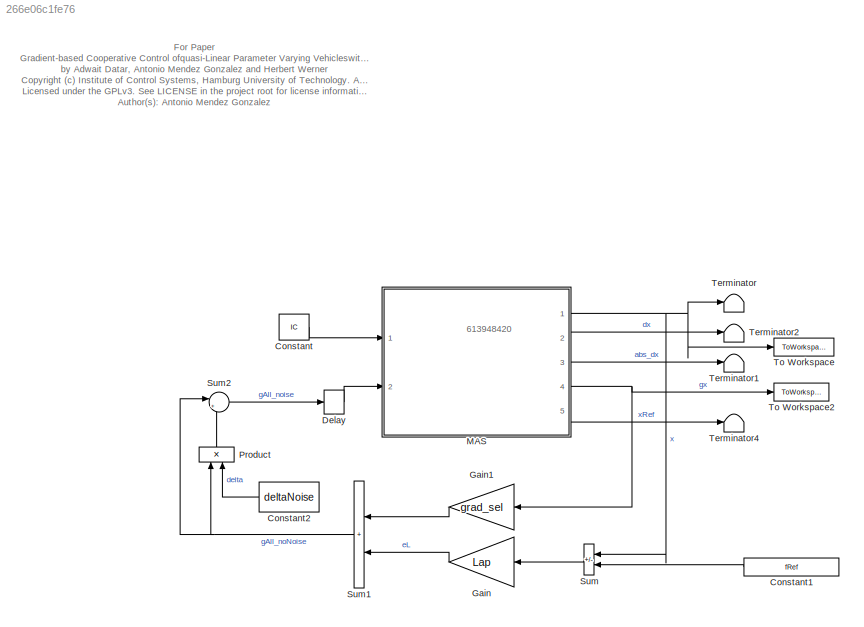
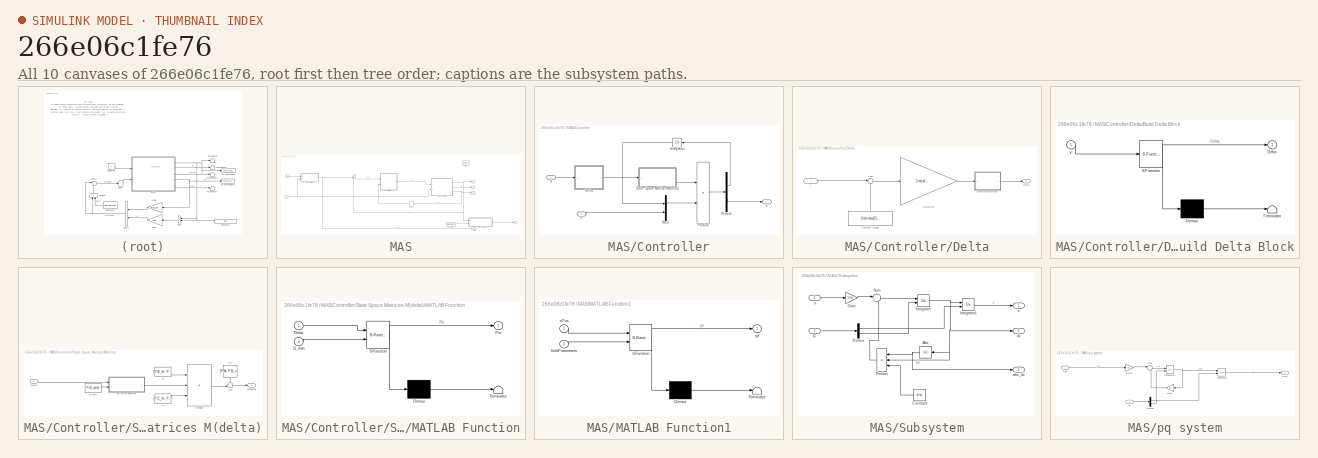
[diagram: thumbnail index - all 10 canvases of the model, root first then tree order]
MODEL slx_266e06c1fe76
KIND model
CONFIG AbsTol = auto
CONFIG EnableMultiTasking = off
CONFIG FixedStep = auto
CONFIG MaxStep = 1e-2
CONFIG MinStep = 1e-6
CONFIG RelTol = 1e-3
CONFIG SampleTimeConstraint = Unconstrained
CONFIG SolverName = ode23t
CONFIG StartTime = 0.0
CONFIG StopFcn = %plotUnicycles(L,out)
CONFIG StopTime = 100
BLOCK [Constant] Constant
  Value = IC
  VectorParams1D = off
BLOCK [Constant] Constant1
  NameLocation = top
  Value = fRef
BLOCK [Constant] Constant2
  NameLocation = top
  Value = deltaNoise
BLOCK [Delay] Delay
  DelayLength = 1
  InputPortMap = u0
  Ports = [1, 1]
BLOCK [Gain] Gain
  Gain = Lap
  Multiplication = Matrix(K*u)
  NameLocation = top
BLOCK [Gain] Gain1
  Gain = grad_sel
  NameLocation = top
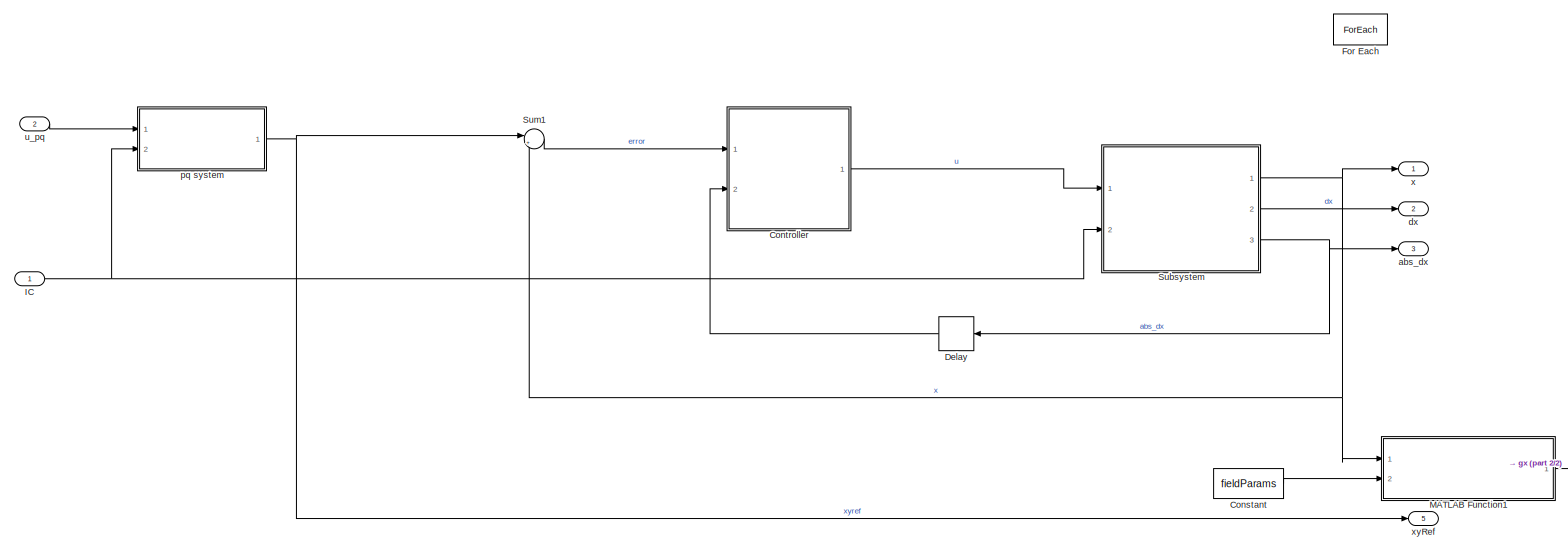
[diagram: MAS - part 1/2, most of the canvas]
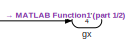
[diagram: MAS - part 2/2, bottom right region]
BLOCK [SubSystem] MAS
  Ports = [2, 5]
  RequestExecContextInheritance = off
  TreatAsAtomicUnit = on
BLOCK [Constant] MAS/Constant
  OutDataTypeStr = Bus: fieldParamsBus
  Value = fieldParams
BLOCK [SubSystem] MAS/Controller
  NameLocation = top
  Ports = [2, 1]
  RequestExecContextInheritance = off
BLOCK [SubSystem] MAS/Controller/Delta
  NameLocation = top
  Ports = [1, 1]
  RequestExecContextInheritance = off
BLOCK [SubSystem] MAS/Controller/Delta/Build Delta Block
  ErrorFcn = Stateflow.Translate.translate
  PermitHierarchicalResolution = ExplicitOnly
  Ports = [1, 1]
  RequestExecContextInheritance = off
  SFBlockType = MATLAB Function
  TreatAsAtomicUnit = on
BLOCK [Demux] MAS/Controller/Delta/Build Delta Block/ Demux 
  Outputs = 1
  Ports = [1, 1]
BLOCK [S-Function] MAS/Controller/Delta/Build Delta Block/ SFunction 
  EnableBusSupport = on
  FunctionName = sf_sfun
  PortCounts = [1 2]
  Ports = [1, 2]
  SFcnIsStateOwnerBlock = off
  SFunctionDeploymentMode = off
  Tag = Stateflow S-Function 4
BLOCK [Terminator] MAS/Controller/Delta/Build Delta Block/ Terminator 
BLOCK [Outport] MAS/Controller/Delta/Build Delta Block/Delta
BLOCK [Inport] MAS/Controller/Delta/Build Delta Block/y
BLOCK [Outport] MAS/Controller/Delta/Delta
BLOCK [Constant] MAS/Controller/Delta/Nominal Values
  NameLocation = right
  Value = (fminmax(2)-fminmax(1))/2
  VectorParams1D = off
BLOCK [Gain] MAS/Controller/Delta/Normalize
  Gain = 1/max(fminmax)
  Multiplication = Matrix(K*u) (u vector)
BLOCK [Sum] MAS/Controller/Delta/Sum
  Inputs = |+-
  Ports = [2, 1]
BLOCK [Inport] MAS/Controller/Delta/y
BLOCK [Demux] MAS/Controller/Demux1
  Outputs = [size(P.A, 1); size(P.C_y, 1)]
  Ports = [1, 2]
BLOCK [Integrator] MAS/Controller/Integrator
  Ports = [1, 1]
BLOCK [Mux] MAS/Controller/Mux1
  DisplayOption = bar
  Inputs = 2
  Ports = [2, 1]
BLOCK [Product] MAS/Controller/Product
  Multiplication = Matrix(*)
  Ports = [2, 1]
  RndMeth = Zero
BLOCK [SubSystem] MAS/Controller/State Space Matrices M(delta)
  Ports = [1, 1]
  RequestExecContextInheritance = off
BLOCK [Constant] MAS/Controller/State Space Matrices M(delta)/D_thth
  Value = P.D_thth
BLOCK [Inport] MAS/Controller/State Space Matrices M(delta)/Delta
BLOCK [Outport] MAS/Controller/State Space Matrices M(delta)/M(delta)
BLOCK [SubSystem] MAS/Controller/State Space Matrices M(delta)/MATLAB Function
  ErrorFcn = Stateflow.Translate.translate
  PermitHierarchicalResolution = ExplicitOnly
  Ports = [2, 1]
  RequestExecContextInheritance = off
  SFBlockType = MATLAB Function
  TreatAsAtomicUnit = on
BLOCK [Demux] MAS/Controller/State Space Matrices M(delta)/MATLAB Function/ Demux 
  Outputs = 1
  Ports = [1, 1]
BLOCK [S-Function] MAS/Controller/State Space Matrices M(delta)/MATLAB Function/ SFunction 
  EnableBusSupport = on
  FunctionName = sf_sfun
  PortCounts = [2 2]
  Ports = [2, 2]
  SFcnIsStateOwnerBlock = off
  SFunctionDeploymentMode = off
  Tag = Stateflow S-Function 5
BLOCK [Terminator] MAS/Controller/State Space Matrices M(delta)/MATLAB Function/ Terminator 
BLOCK [Inport] MAS/Controller/State Space Matrices M(delta)/MATLAB Function/D_thth
  Port = 2
BLOCK [Inport] MAS/Controller/State Space Matrices M(delta)/MATLAB Function/Delta
BLOCK [Outport] MAS/Controller/State Space Matrices M(delta)/MATLAB Function/Psi
BLOCK [Constant] MAS/Controller/State Space Matrices M(delta)/P0
  NameLocation = left
  Value = [P.A, P.B_u; P.C_y, P.D_yu];
  VectorParams1D = off
BLOCK [Product] MAS/Controller/State Space Matrices M(delta)/Product
  Inputs = 3
  Multiplication = Matrix(*)
  Ports = [3, 1]
  RndMeth = Zero
BLOCK [Constant] MAS/Controller/State Space Matrices M(delta)/Q
  Value = [P.B_th; P.D_yth]
BLOCK [Sum] MAS/Controller/State Space Matrices M(delta)/Sum
  Inputs = ++|
  Ports = [2, 1]
BLOCK [Constant] MAS/Controller/State Space Matrices M(delta)/V
  Value = [P.C_th, P.D_thu ]
  VectorParams1D = off
BLOCK [Inport] MAS/Controller/d
  Port = 2
BLOCK [Inport] MAS/Controller/e
BLOCK [Outport] MAS/Controller/u
BLOCK [Delay] MAS/Delay
  DelayLength = 1
  InputPortMap = u0
  NameLocation = top
  Ports = [1, 1]
BLOCK [ForEach] MAS/For Each
  DisableCoverage = on
  Ports = []
BLOCK [Inport] MAS/IC
  Partition = on
  PartitionDimension = 1
  PartitionOffset = 0
  PartitionWidth = 1
BLOCK [SubSystem] MAS/MATLAB Function1
  ErrorFcn = Stateflow.Translate.translate
  PermitHierarchicalResolution = ExplicitOnly
  Ports = [2, 1]
  RequestExecContextInheritance = off
  SFBlockType = MATLAB Function
  TreatAsAtomicUnit = on
BLOCK [Demux] MAS/MATLAB Function1/ Demux 
  Outputs = 1
  Ports = [1, 1]
BLOCK [S-Function] MAS/MATLAB Function1/ SFunction 
  EnableBusSupport = on
  FunctionName = sf_sfun
  PortCounts = [2 2]
  Ports = [2, 2]
  SFcnIsStateOwnerBlock = off
  SFunctionDeploymentMode = off
  Tag = Stateflow S-Function 1
BLOCK [Terminator] MAS/MATLAB Function1/ Terminator 
BLOCK [Inport] MAS/MATLAB Function1/fieldParameters
  Port = 2
BLOCK [Outport] MAS/MATLAB Function1/gx
BLOCK [Inport] MAS/MATLAB Function1/xPos
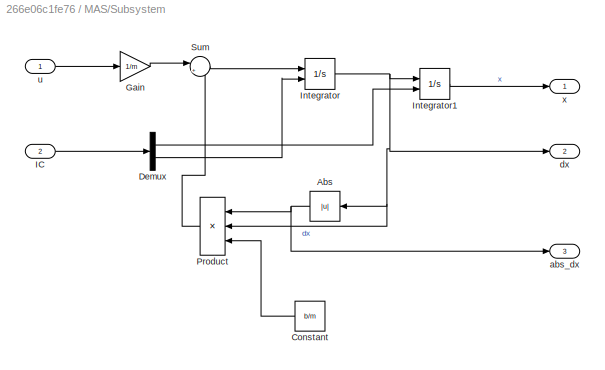
BLOCK [SubSystem] MAS/Subsystem
  Ports = [2, 3]
  RequestExecContextInheritance = off
BLOCK [Abs] MAS/Subsystem/Abs
  NameLocation = top
  SaturateOnIntegerOverflow = off
BLOCK [Constant] MAS/Subsystem/Constant
  NameLocation = top
  Value = b/m
BLOCK [Demux] MAS/Subsystem/Demux
  Outputs = 2
  Ports = [1, 2]
BLOCK [Gain] MAS/Subsystem/Gain
  Gain = 1/m
BLOCK [Inport] MAS/Subsystem/IC
  Port = 2
BLOCK [Integrator] MAS/Subsystem/Integrator
  InitialConditionSource = external
  Ports = [2, 1]
BLOCK [Integrator] MAS/Subsystem/Integrator1
  InitialConditionSource = external
  Ports = [2, 1]
BLOCK [Product] MAS/Subsystem/Product
  Inputs = 3
  NameLocation = top
  Ports = [3, 1]
BLOCK [Sum] MAS/Subsystem/Sum
  Inputs = |+-
  Ports = [2, 1]
BLOCK [Outport] MAS/Subsystem/abs_dx
  Port = 3
BLOCK [Outport] MAS/Subsystem/dx
  Port = 2
BLOCK [Inport] MAS/Subsystem/u
BLOCK [Outport] MAS/Subsystem/x
BLOCK [Sum] MAS/Sum1
  Inputs = |+-
  Ports = [2, 1]
BLOCK [Outport] MAS/abs_dx
  ConcatenationDimension = 1
  Port = 3
  PortDimensions = 1
BLOCK [Outport] MAS/dx
  ConcatenationDimension = 1
  Port = 2
  PortDimensions = 1
BLOCK [Outport] MAS/gx
  ConcatenationDimension = 1
  Port = 4
  PortDimensions = 1
BLOCK [SubSystem] MAS/pq system
  Ports = [2, 1]
  RequestExecContextInheritance = off
BLOCK [Demux] MAS/pq system/Demux
  Outputs = 2
  Ports = [1, 2]
BLOCK [Gain] MAS/pq system/Gain
  Gain = Kd
  NameLocation = top
BLOCK [Gain] MAS/pq system/Gain1
  Gain = Kp
BLOCK [Inport] MAS/pq system/IC
  Port = 2
BLOCK [Integrator] MAS/pq system/Integrator
  InitialCondition = IC(1,1)
  InitialConditionSource = external
  Ports = [2, 1]
BLOCK [Integrator] MAS/pq system/Integrator1
  InitialConditionSource = external
  Ports = [2, 1]
BLOCK [Sum] MAS/pq system/Sum
  Inputs = |--
  Ports = [2, 1]
BLOCK [Inport] MAS/pq system/u_pq
BLOCK [Outport] MAS/pq system/xyref
BLOCK [Inport] MAS/u_pq
  Partition = on
  PartitionDimension = 1
  PartitionOffset = 0
  PartitionWidth = 1
  Port = 2
BLOCK [Outport] MAS/x
  ConcatenationDimension = 1
  PortDimensions = 1
BLOCK [Outport] MAS/xyRef
  ConcatenationDimension = 1
  Port = 5
  PortDimensions = 1
BLOCK [Product] Product
  NameLocation = right
  Ports = [2, 1]
BLOCK [Sum] Sum
  IconShape = rectangular
  Inputs = +-
  NameLocation = top
  Ports = [2, 1]
BLOCK [Sum] Sum1
  IconShape = rectangular
  NameLocation = top
  Ports = [2, 1]
BLOCK [Sum] Sum2
  Inputs = |++
  Ports = [2, 1]
BLOCK [Terminator] Terminator
BLOCK [Terminator] Terminator1
BLOCK [Terminator] Terminator2
BLOCK [Terminator] Terminator4
BLOCK [ToWorkspace] To Workspace
  MaxDataPoints = inf
  Ports = [1]
  SampleTime = -1
  Save2DSignal = 2-D array (concatenate along first dimension)
  VariableName = x
BLOCK [ToWorkspace] To Workspace2
  MaxDataPoints = inf
  Ports = [1]
  SampleTime = -1
  Save2DSignal = 2-D array (concatenate along first dimension)
  VariableName = grad
ANNOTATION (root): 613948420
ANNOTATION (root): For Paper Gradient-based Cooperative Control ofquasi-Linear Parameter Varying Vehicleswith Noisy Gradients by Adwait Datar, Antonio Mendez Gonzalez and Herbert Werner <copyright redacted>
LINE Constant1:1 -> Sum:2
LINE Constant2:1 -> Product:2
LINE Constant:1 -> MAS:1
LINE Delay:1 -> MAS:2
LINE Gain1:1 -> Sum1:1
LINE Gain:1 -> Sum1:2
LINE MAS/Constant:1 -> MAS/MATLAB Function1:2
LINE MAS/Controller/Delta/Build Delta Block:1 -> MAS/Controller/Delta/Delta:1
LINE MAS/Controller/Delta/Nominal Values:1 -> MAS/Controller/Delta/Sum:2
LINE MAS/Controller/Delta/Normalize:1 -> MAS/Controller/Delta/Build Delta Block:1
LINE MAS/Controller/Delta/Sum:1 -> MAS/Controller/Delta/Normalize:1
LINE MAS/Controller/Delta/y:1 -> MAS/Controller/Delta/Sum:1
LINE MAS/Controller/Delta:1 -> MAS/Controller/State Space Matrices M(delta):1
LINE MAS/Controller/Demux1:1 -> MAS/Controller/Integrator:1
LINE MAS/Controller/Demux1:2 -> MAS/Controller/u:1
LINE MAS/Controller/Integrator:1 -> MAS/Controller/Mux1:1
LINE MAS/Controller/Mux1:1 -> MAS/Controller/Product:2
LINE MAS/Controller/Product:1 -> MAS/Controller/Demux1:1
LINE MAS/Controller/State Space Matrices M(delta)/D_thth:1 -> MAS/Controller/State Space Matrices M(delta)/MATLAB Function:2
LINE MAS/Controller/State Space Matrices M(delta)/Delta:1 -> MAS/Controller/State Space Matrices M(delta)/MATLAB Function:1
LINE MAS/Controller/State Space Matrices M(delta)/MATLAB Function:1 -> MAS/Controller/State Space Matrices M(delta)/Product:2
LINE MAS/Controller/State Space Matrices M(delta)/P0:1 -> MAS/Controller/State Space Matrices M(delta)/Sum:1
LINE MAS/Controller/State Space Matrices M(delta)/Product:1 -> MAS/Controller/State Space Matrices M(delta)/Sum:2
LINE MAS/Controller/State Space Matrices M(delta)/Q:1 -> MAS/Controller/State Space Matrices M(delta)/Product:1
LINE MAS/Controller/State Space Matrices M(delta)/Sum:1 -> MAS/Controller/State Space Matrices M(delta)/M(delta):1
LINE MAS/Controller/State Space Matrices M(delta)/V:1 -> MAS/Controller/State Space Matrices M(delta)/Product:3
LINE MAS/Controller/State Space Matrices M(delta):1 -> MAS/Controller/Product:1
LINE MAS/Controller/d:1 -> MAS/Controller/Delta:1
LINE MAS/Controller/e:1 -> MAS/Controller/Mux1:2
LINE MAS/Controller:1 -> MAS/Subsystem:1
LINE MAS/Delay:1 -> MAS/Controller:2
NET MAS/IC:1 -> MAS/Subsystem:2, MAS/pq system:2
LINE MAS/MATLAB Function1:1 -> MAS/gx:1
NET MAS/Subsystem/Abs:1 -> MAS/Subsystem/Product:1, MAS/Subsystem/abs_dx:1
LINE MAS/Subsystem/Constant:1 -> MAS/Subsystem/Product:3
LINE MAS/Subsystem/Demux:1 -> MAS/Subsystem/Integrator1:2
LINE MAS/Subsystem/Demux:2 -> MAS/Subsystem/Integrator:2
LINE MAS/Subsystem/Gain:1 -> MAS/Subsystem/Sum:1
LINE MAS/Subsystem/IC:1 -> MAS/Subsystem/Demux:1
LINE MAS/Subsystem/Integrator1:1 -> MAS/Subsystem/x:1
NET MAS/Subsystem/Integrator:1 -> MAS/Subsystem/Abs:1, MAS/Subsystem/Integrator1:1, MAS/Subsystem/Product:2, MAS/Subsystem/dx:1
LINE MAS/Subsystem/Product:1 -> MAS/Subsystem/Sum:2
LINE MAS/Subsystem/Sum:1 -> MAS/Subsystem/Integrator:1
LINE MAS/Subsystem/u:1 -> MAS/Subsystem/Gain:1
NET MAS/Subsystem:1 -> MAS/MATLAB Function1:1, MAS/Sum1:2, MAS/x:1
LINE MAS/Subsystem:2 -> MAS/dx:1
NET MAS/Subsystem:3 -> MAS/Delay:1, MAS/abs_dx:1
LINE MAS/Sum1:1 -> MAS/Controller:1
LINE MAS/pq system/Demux:1 -> MAS/pq system/Integrator:2
LINE MAS/pq system/Demux:2 -> MAS/pq system/Integrator1:2
LINE MAS/pq system/Gain1:1 -> MAS/pq system/Sum:1
LINE MAS/pq system/Gain:1 -> MAS/pq system/Sum:2
LINE MAS/pq system/IC:1 -> MAS/pq system/Demux:1
NET MAS/pq system/Integrator1:1 -> MAS/pq system/Gain:1, MAS/pq system/Integrator:1
LINE MAS/pq system/Integrator:1 -> MAS/pq system/xyref:1
LINE MAS/pq system/Sum:1 -> MAS/pq system/Integrator1:1
LINE MAS/pq system/u_pq:1 -> MAS/pq system/Gain1:1
NET MAS/pq system:1 -> MAS/Sum1:1, MAS/xyRef:1
LINE MAS/u_pq:1 -> MAS/pq system:1
NET MAS:1 -> Sum:1, Terminator:1, To Workspace:1
LINE MAS:2 -> Terminator2:1
LINE MAS:3 -> Terminator1:1
NET MAS:4 -> Gain1:1, To Workspace2:1
LINE MAS:5 -> Terminator4:1
LINE Product:1 -> Sum2:2
NET Sum1:1 -> Product:1, Sum2:1
LINE Sum2:1 -> Delay:1
LINE Sum:1 -> Gain:1
note: NET lines group one-source signal fan-out (src -> all destinations, sorted); 1:1 wires keep LINE
CHART MAS/MATLAB Function1 states=1 transitions=1
  STATE_LABEL 'eML_blk_kernel()'
  STATE_LABEL 'SCRIPT:\nfunction gx = gradPsi(xPos, fieldParameters)\n\nxM = fieldParameters.xM;\n\nL_psi = fieldParameters.L_psi;\n\ngx = -L_psi*(xM - xPos);\n\nend'
CHART MAS/Controller/Delta/Build Delta Block states=1 transitions=1
  STATE_LABEL 'eML_blk_kernel()'
  STATE_LABEL 'SCRIPT:\nfunction Delta = Delta(y)\n%#codegen\n\nDelta = diag([y(1)]);'
CHART MAS/Controller/State Space Matrices M(delta)/MATLAB Function states=1 transitions=1
  STATE_LABEL 'eML_blk_kernel()'
  STATE_LABEL 'SCRIPT:\nfunction Psi = Psi(Delta, D_thth)\n%#codegen\n\n[nwth, nzth] = size(Delta);\n\nPsi = Delta * (eye(nwth) - D_thth*Delta)^-1;'
CHART  states=0 transitions=0
CHART  states=0 transitions=0
CHART  states=0 transitions=0
